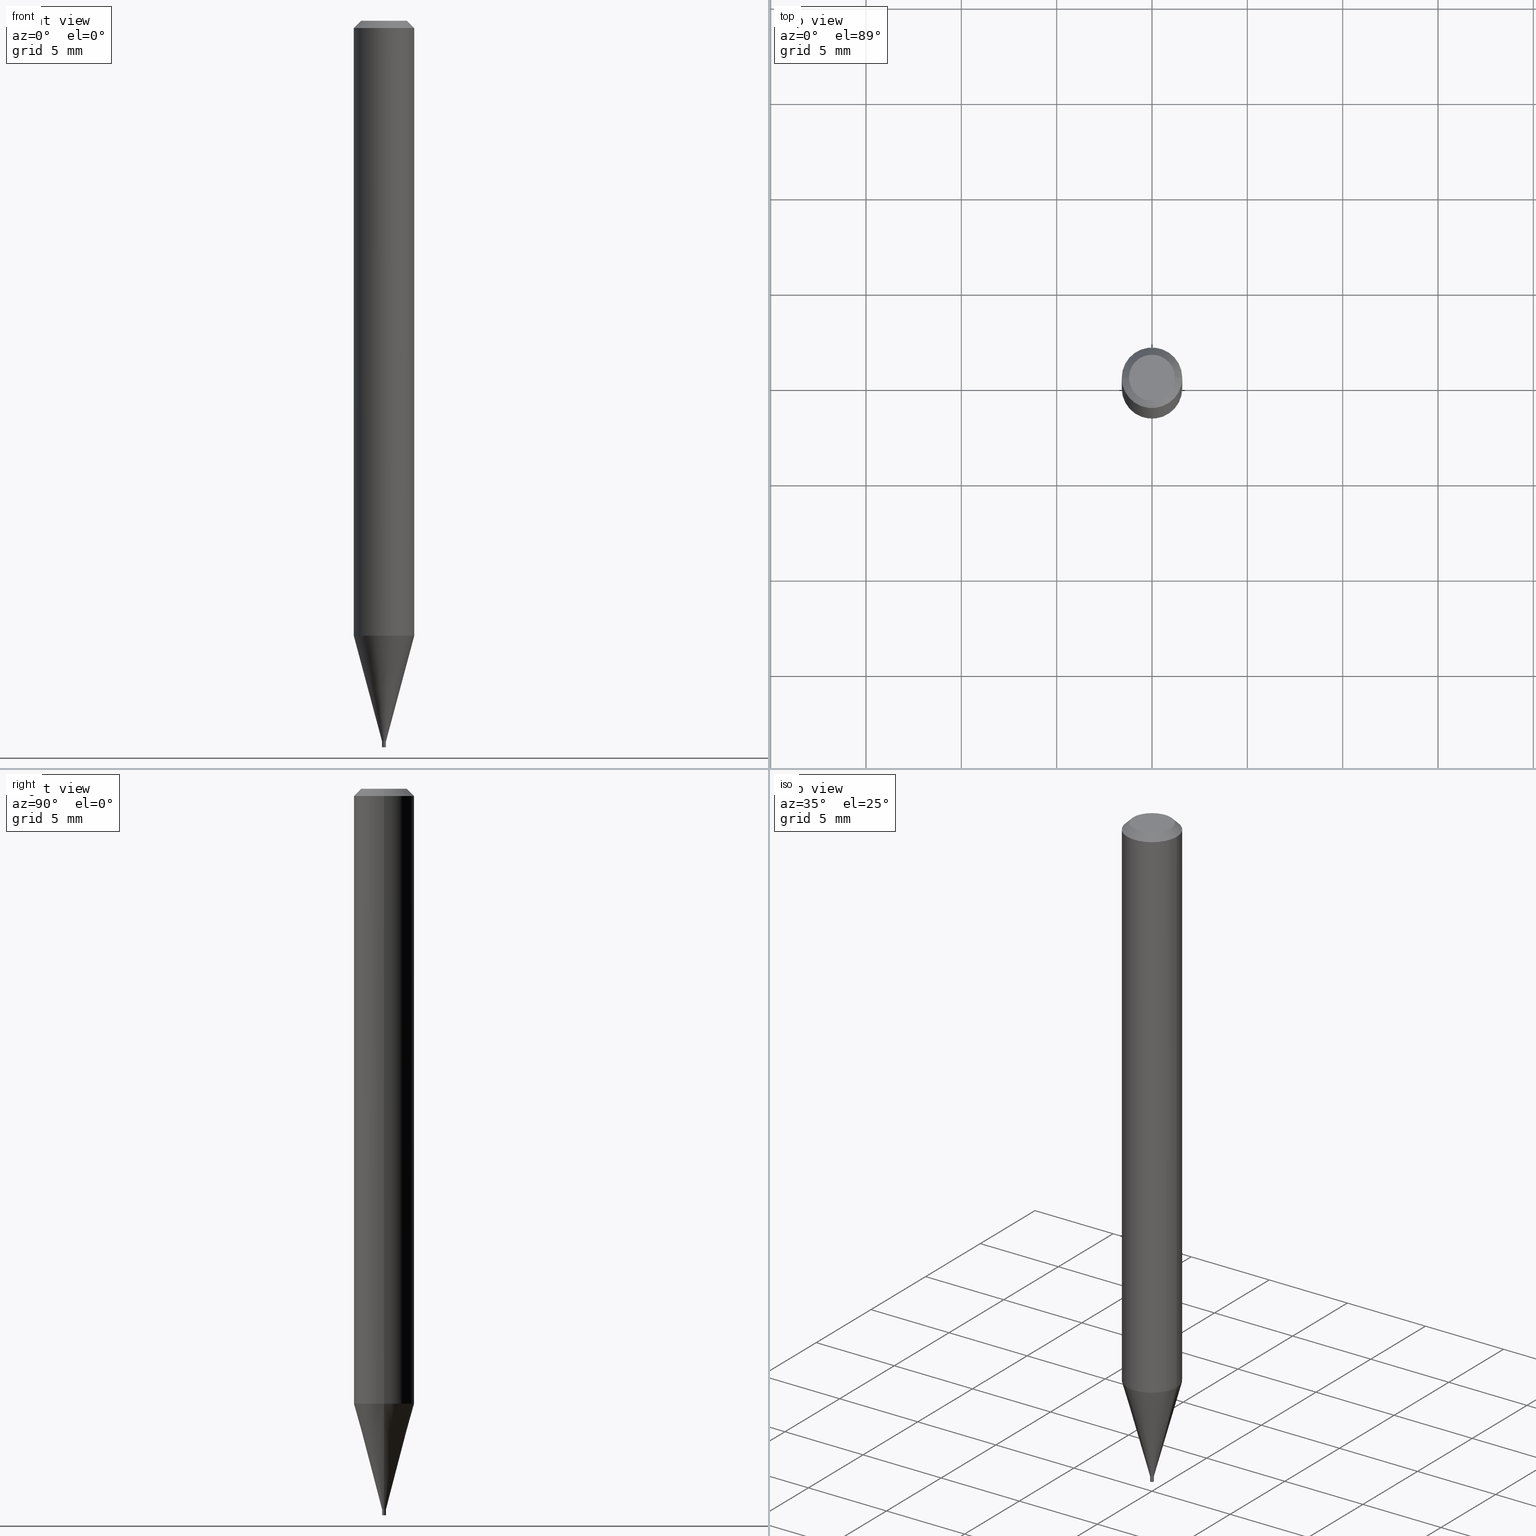
[diagram: canonical four-view strip — front | top / right | iso, engineering-drawing reading convention]
A machine part, canonical four-view strip (front | top / right | iso — engineering-drawing reading convention). The complete STEP part file that produces these views, byte-faithful:
ISO-10303-21;
HEADER;
FILE_DESCRIPTION (( 'STEP AP203' ),
    '1' );
FILE_NAME ('04043.STEP',
    '2024-03-14T16:55:10',
    ( '' ),
    ( '' ),
    'SwSTEP 2.0',
    'SolidWorks 2023',
    '' );
FILE_SCHEMA (( 'CONFIG_CONTROL_DESIGN' ));
ENDSEC;

DATA;
#1 = MANIFOLD_SOLID_BREP ( 'Body-Move/Copy2[1]', #128 ) ;
#2 = CALENDAR_DATE ( 2024, 14, 3 ) ;
#3 = CIRCLE ( 'NONE', #250, 0.06250000000000000000 ) ;
#4 = EDGE_LOOP ( 'NONE', ( #72, #270, #368, #363 ) ) ;
#5 = EDGE_CURVE ( 'NONE', #118, #435, #395, .T. ) ;
#6 = VERTEX_POINT ( 'NONE', #157 ) ;
#7 = EDGE_LOOP ( 'NONE', ( #77, #299, #229, #301 ) ) ;
#8 = CC_DESIGN_PERSON_AND_ORGANIZATION_ASSIGNMENT ( #218, #219, ( #259 ) ) ;
#9 = AXIS2_PLACEMENT_3D ( 'NONE', #61, #101, #213 ) ;
#10 = DIRECTION ( 'NONE',  ( 1.000000000000000000, -6.982962677686262766E-15, 0.000000000000000000 ) ) ;
#11 = FACE_OUTER_BOUND ( 'NONE', #4, .T. ) ;
#12 = EDGE_CURVE ( 'NONE', #155, #371, #264, .T. ) ;
#13 = ORIENTED_EDGE ( 'NONE', *, *, #252, .T. ) ;
#14 = CARTESIAN_POINT ( 'NONE',  ( -0.004000000000000000083, -5.187851410801255312E-15, -1.487999999999999989 ) ) ;
#15 = VERTEX_POINT ( 'NONE', #269 ) ;
#16 = PLANE ( 'NONE',  #145 ) ;
#17 = CIRCLE ( 'NONE', #374, 0.04749999999999999362 ) ;
#18 = CC_DESIGN_APPROVAL ( #399, ( #197 ) ) ;
#19 = CYLINDRICAL_SURFACE ( 'NONE', #349, 0.004000000000000000083 ) ;
#20 = ORIENTED_EDGE ( 'NONE', *, *, #356, .T. ) ;
#21 = PLANE ( 'NONE',  #421 ) ;
#22 = CIRCLE ( 'NONE', #191, 0.003999999999999648802 ) ;
#23 = CARTESIAN_POINT ( 'NONE',  ( 0.004000000000000000083, -5.223256082909346148E-15, -1.487999999999999989 ) ) ;
#24 = CARTESIAN_POINT ( 'NONE',  ( -0.06250000000000000000, -1.798620233096004515E-15, -0.01499999999999999944 ) ) ;
#25 = CARTESIAN_POINT ( 'NONE',  ( -0.004000000000000000083, 2.842170943040400803E-17, -1.967574036101962334E-31 ) ) ;
#26 = CARTESIAN_POINT ( 'NONE',  ( 3.638857583603483825E-29, -5.195324232198600513E-15, -1.487999999999999989 ) ) ;
#27 = FACE_OUTER_BOUND ( 'NONE', #434, .T. ) ;
#28 = CARTESIAN_POINT ( 'NONE',  ( -0.003999999999999648802, -4.577929989363811904E-15, -1.487999999999999989 ) ) ;
#29 = CIRCLE ( 'NONE', #108, 0.004000000000000000083 ) ;
#30 = DIRECTION ( 'NONE',  ( 1.000000000000000000, -6.982962677686332975E-15, 0.000000000000000000 ) ) ;
#31 = DIRECTION ( 'NONE',  ( -2.445468806185136597E-29, 3.491481338843145583E-15, 1.000000000000000000 ) ) ;
#32 = EDGE_CURVE ( 'NONE', #382, #118, #224, .T. ) ;
#33 = DIRECTION ( 'NONE',  ( -2.445468806185136597E-29, 3.491481338843145583E-15, 1.000000000000000000 ) ) ;
#34 = PERSON_AND_ORGANIZATION_ROLE ( 'creator' ) ;
#35 = ORIENTED_EDGE ( 'NONE', *, *, #32, .F. ) ;
#36 = CLOSED_SHELL ( 'NONE', ( #422, #411, #129, #466, #117, #263, #370, #429, #94, #441, #457, #272 ) ) ;
#37 = PERSON_AND_ORGANIZATION ( #462, #375 ) ;
#38 = AXIS2_PLACEMENT_3D ( 'NONE', #179, #313, #280 ) ;
#39 = EDGE_CURVE ( 'NONE', #152, #371, #306, .T. ) ;
#40 = DIMENSIONAL_EXPONENTS ( 1.000000000000000000, 0.000000000000000000, 0.000000000000000000, 0.000000000000000000, 0.000000000000000000, 0.000000000000000000, 0.000000000000000000 ) ;
#41 = EDGE_LOOP ( 'NONE', ( #344, #112, #151, #406 ) ) ;
#42 = EDGE_LOOP ( 'NONE', ( #376, #410, #408, #120 ) ) ;
#43 = ORIENTED_EDGE ( 'NONE', *, *, #12, .T. ) ;
#44 = ORIENTED_EDGE ( 'NONE', *, *, #380, .T. ) ;
#45 = CARTESIAN_POINT ( 'NONE',  ( 3.104950674372529160E-29, -4.433046665809486788E-15, -1.269675027757220187 ) ) ;
#46 = CC_DESIGN_PERSON_AND_ORGANIZATION_ASSIGNMENT ( #446, #126, ( #165 ) ) ;
#47 = LINE ( 'NONE', #230, #403 ) ;
#48 = ORIENTED_EDGE ( 'NONE', *, *, #324, .T. ) ;
#49 = VERTEX_POINT ( 'NONE', #14 ) ;
#50 = ORIENTED_EDGE ( 'NONE', *, *, #110, .T. ) ;
#51 = DIRECTION ( 'NONE',  ( 1.000000000000000000, -6.982962677686217801E-15, 0.000000000000000000 ) ) ;
#52 = ORIENTED_EDGE ( 'NONE', *, *, #241, .T. ) ;
#53 = CONICAL_SURFACE ( 'NONE', #59, 0.06250000000000000000, 0.7853981633974952414 ) ;
#54 = CARTESIAN_POINT ( 'NONE',  ( 0.003500000000000000507, -5.219764601570501563E-15, -1.487999999999999767 ) ) ;
#55 = DIRECTION ( 'NONE',  ( 0.7071067811869508057, -2.468850131086481016E-15, 0.7071067811861442287 ) ) ;
#56 = CARTESIAN_POINT ( 'NONE',  ( -0.06249999999999997918, -3.988957455959424172E-15, -1.269675027757220187 ) ) ;
#57 = ADVANCED_FACE ( 'NONE', ( #407 ), #19, .T. ) ;
#58 = CARTESIAN_POINT ( 'NONE',  ( 3.638857583603483265E-29, -5.195324232198599724E-15, -1.487999999999999767 ) ) ;
#59 = AXIS2_PLACEMENT_3D ( 'NONE', #277, #325, #354 ) ;
#60 = LOCAL_TIME ( 12, 55, 10.00000000000000000, #236 ) ;
#61 = CARTESIAN_POINT ( 'NONE',  ( 3.668203209277705088E-31, -5.237222008264718399E-17, -0.01499999999999999944 ) ) ;
#62 = CYLINDRICAL_SURFACE ( 'NONE', #38, 0.003999999999999922888 ) ;
#63 = CARTESIAN_POINT ( 'NONE',  ( 3.576687321579069994E-29, -5.368277968210015545E-15, -1.500000000000000222 ) ) ;
#64 = CARTESIAN_POINT ( 'NONE',  ( 3.638857583603483825E-29, -5.195324232198600513E-15, -1.487999999999999989 ) ) ;
#65 = CARTESIAN_POINT ( 'NONE',  ( 3.638857583603483825E-29, -5.195324232198600513E-15, -1.487999999999999989 ) ) ;
#66 = LENGTH_MEASURE_WITH_UNIT ( LENGTH_MEASURE( 0.02539999999999999897 ), #286 );
#67 = EDGE_CURVE ( 'NONE', #15, #152, #372, .T. ) ;
#68 = AXIS2_PLACEMENT_3D ( 'NONE', #64, #106, #243 ) ;
#69 = CARTESIAN_POINT ( 'NONE',  ( 3.668203209277704895E-29, -5.237222008264718177E-15, -1.500000000000000222 ) ) ;
#70 = PERSON_AND_ORGANIZATION ( #462, #375 ) ;
#71 = EDGE_CURVE ( 'NONE', #6, #260, #309, .T. ) ;
#72 = ORIENTED_EDGE ( 'NONE', *, *, #162, .T. ) ;
#73 = PRODUCT_RELATED_PRODUCT_CATEGORY ( 'detail', '', ( #165 ) ) ;
#74 = ORIENTED_EDGE ( 'NONE', *, *, #348, .F. ) ;
#75 = EDGE_LOOP ( 'NONE', ( #185, #401 ) ) ;
#76 = CARTESIAN_POINT ( 'NONE',  ( 0.000000000000000000, 0.000000000000000000, 0.000000000000000000 ) ) ;
#77 = ORIENTED_EDGE ( 'NONE', *, *, #186, .F. ) ;
#78 = EDGE_CURVE ( 'NONE', #155, #83, #373, .T. ) ;
#79 = CARTESIAN_POINT ( 'NONE',  ( -0.003500000000000000507, -5.170455236446996590E-15, -1.487999999999999767 ) ) ;
#80 = AXIS2_PLACEMENT_3D ( 'NONE', #121, #265, #268 ) ;
#81 = ORIENTED_EDGE ( 'NONE', *, *, #448, .F. ) ;
#82 = VECTOR ( 'NONE', #311, 39.37007874015748143 ) ;
#83 = VERTEX_POINT ( 'NONE', #54 ) ;
#84 = CARTESIAN_POINT ( 'NONE',  ( 0.004000000000000000083, -5.265153858975463812E-15, -1.500000000000000222 ) ) ;
#85 = DIRECTION ( 'NONE',  ( -2.445468806185136877E-29, 3.491481338843145188E-15, 1.000000000000000000 ) ) ;
#86 = VERTEX_POINT ( 'NONE', #84 ) ;
#87 = EDGE_CURVE ( 'NONE', #86, #232, #47, .T. ) ;
#88 =( CONVERSION_BASED_UNIT ( 'INCH', #66 ) LENGTH_UNIT ( ) NAMED_UNIT ( #40 ) );
#89 = CONICAL_SURFACE ( 'NONE', #153, 0.003999999999999648802, 0.2617993877991501295 ) ;
#90 = LOCAL_TIME ( 12, 55, 10.00000000000000000, #109 ) ;
#91 = PRODUCT_DEFINITION_SHAPE ( 'NONE', 'NONE',  #197 ) ;
#92 = APPROVAL_STATUS ( 'not_yet_approved' ) ;
#93 = DIRECTION ( 'NONE',  ( 2.438088387897960049E-29, -3.491481338843145188E-15, -1.000000000000000000 ) ) ;
#94 = ADVANCED_FACE ( 'NONE', ( #198 ), #16, .F. ) ;
#95 = FACE_OUTER_BOUND ( 'NONE', #187, .T. ) ;
#96 = CARTESIAN_POINT ( 'NONE',  ( -0.004000000000000000083, -5.187851410801255312E-15, -1.500000000000000222 ) ) ;
#97 = LINE ( 'NONE', #175, #146 ) ;
#98 = FACE_OUTER_BOUND ( 'NONE', #183, .T. ) ;
#99 = AXIS2_PLACEMENT_3D ( 'NONE', #262, #440, #337 ) ;
#100 = CIRCLE ( 'NONE', #320, 0.004000000000000000083 ) ;
#101 = DIRECTION ( 'NONE',  ( -2.445468806185136597E-29, 3.491481338843145583E-15, 1.000000000000000000 ) ) ;
#102 = CARTESIAN_POINT ( 'NONE',  ( 0.000000000000000000, 0.000000000000000000, 0.000000000000000000 ) ) ;
#103 = DIRECTION ( 'NONE',  ( 2.445468806185136597E-29, -3.491481338843145583E-15, -1.000000000000000000 ) ) ;
#104 = DIRECTION ( 'NONE',  ( 1.000000000000000000, -6.982962677686192558E-15, 0.000000000000000000 ) ) ;
#105 = DATE_AND_TIME ( #253, #90 ) ;
#106 = DIRECTION ( 'NONE',  ( -2.445468806185136597E-29, 3.491481338843145583E-15, 1.000000000000000000 ) ) ;
#107 = AXIS2_PLACEMENT_3D ( 'NONE', #305, #384, #443 ) ;
#108 = AXIS2_PLACEMENT_3D ( 'NONE', #206, #350, #452 ) ;
#109 = COORDINATED_UNIVERSAL_TIME_OFFSET ( 5, 0, .BEHIND. ) ;
#110 = EDGE_CURVE ( 'NONE', #6, #366, #444, .T. ) ;
#111 = DATE_AND_TIME ( #2, #328 ) ;
#112 = ORIENTED_EDGE ( 'NONE', *, *, #392, .T. ) ;
#113 = ORIENTED_EDGE ( 'NONE', *, *, #256, .F. ) ;
#114 = AXIS2_PLACEMENT_3D ( 'NONE', #58, #453, #208 ) ;
#115 = APPROVAL_PERSON_ORGANIZATION ( #431, #340, #298 ) ;
#116 = ORIENTED_EDGE ( 'NONE', *, *, #139, .T. ) ;
#117 = ADVANCED_FACE ( 'NONE', ( #11 ), #430, .T. ) ;
#118 = VERTEX_POINT ( 'NONE', #56 ) ;
#119 = EDGE_LOOP ( 'NONE', ( #188, #199 ) ) ;
#120 = ORIENTED_EDGE ( 'NONE', *, *, #110, .F. ) ;
#121 = CARTESIAN_POINT ( 'NONE',  ( 3.638857583603483265E-29, -5.195324232198599724E-15, -1.487999999999999767 ) ) ;
#122 = CONICAL_SURFACE ( 'NONE', #114, 0.003500000000000000507, 0.7853981633980186006 ) ;
#123 = CARTESIAN_POINT ( 'NONE',  ( -0.06250000000000000000, 3.840629472727444916E-16, -0.01499999999999999944 ) ) ;
#124 = ORIENTED_EDGE ( 'NONE', *, *, #289, .F. ) ;
#125 = DIRECTION ( 'NONE',  ( -2.445468806185136877E-29, 3.491481338843145188E-15, 1.000000000000000000 ) ) ;
#126 = PERSON_AND_ORGANIZATION_ROLE ( 'design_owner' ) ;
#127 = DIRECTION ( 'NONE',  ( -1.000000000000000000, 6.982962677686265922E-15, -4.876176775795935793E-29 ) ) ;
#128 = CLOSED_SHELL ( 'NONE', ( #437, #296, #57, #156 ) ) ;
#129 = ADVANCED_FACE ( 'NONE', ( #244 ), #235, .T. ) ;
#130 = CC_DESIGN_APPROVAL ( #340, ( #154 ) ) ;
#131 = DIRECTION ( 'NONE',  ( -2.445468806185136597E-29, 3.491481338843145583E-15, 1.000000000000000000 ) ) ;
#132 = DIRECTION ( 'NONE',  ( -2.445468806185136597E-29, 3.491481338843145583E-15, 1.000000000000000000 ) ) ;
#133 = CARTESIAN_POINT ( 'NONE',  ( 0.000000000000000000, 0.000000000000000000, 0.000000000000000000 ) ) ;
#134 = FACE_OUTER_BOUND ( 'NONE', #75, .T. ) ;
#135 = DIRECTION ( 'NONE',  ( 1.000000000000000000, -6.982962677686217801E-15, 0.000000000000000000 ) ) ;
#136 = CARTESIAN_POINT ( 'NONE',  ( 3.638857583603483265E-29, -5.195324232198599724E-15, -1.487999999999999767 ) ) ;
#137 = CIRCLE ( 'NONE', #68, 0.003999999999999648802 ) ;
#138 = LINE ( 'NONE', #416, #342 ) ;
#139 = EDGE_CURVE ( 'NONE', #86, #439, #29, .T. ) ;
#140 = CYLINDRICAL_SURFACE ( 'NONE', #389, 0.06250000000000000000 ) ;
#141 = LINE ( 'NONE', #323, #409 ) ;
#142 = DATE_TIME_ROLE ( 'creation_date' ) ;
#143 = DIRECTION ( 'NONE',  ( -2.445468806185136597E-29, 3.491481338843145583E-15, 1.000000000000000000 ) ) ;
#144 = CC_DESIGN_PERSON_AND_ORGANIZATION_ASSIGNMENT ( #285, #367, ( #197 ) ) ;
#145 = AXIS2_PLACEMENT_3D ( 'NONE', #163, #335, #307 ) ;
#146 = VECTOR ( 'NONE', #388, 39.37007874015748143 ) ;
#147 = APPROVAL_DATE_TIME ( #111, #148 ) ;
#148 = APPROVAL ( #255, 'UNSPECIFIED' ) ;
#149 = EDGE_LOOP ( 'NONE', ( #221, #182, #50, #329 ) ) ;
#150 = DATE_AND_TIME ( #291, #209 ) ;
#151 = ORIENTED_EDGE ( 'NONE', *, *, #87, .T. ) ;
#152 = VERTEX_POINT ( 'NONE', #246 ) ;
#153 = AXIS2_PLACEMENT_3D ( 'NONE', #347, #210, #135 ) ;
#154 = PRODUCT_DEFINITION_FORMATION_WITH_SPECIFIED_SOURCE ( 'ANY', '', #165, .NOT_KNOWN. ) ;
#155 = VERTEX_POINT ( 'NONE', #394 ) ;
#156 = ADVANCED_FACE ( 'NONE', ( #95 ), #172, .F. ) ;
#157 = CARTESIAN_POINT ( 'NONE',  ( -0.04749999999999999362, 3.578768372314186347E-16, -1.404502872476254025E-15 ) ) ;
#158 = CARTESIAN_POINT ( 'NONE',  ( -0.003999999999999648802, -5.166902522768199636E-15, -1.487999999999999989 ) ) ;
#159 = ORIENTED_EDGE ( 'NONE', *, *, #39, .F. ) ;
#160 = MANIFOLD_SOLID_BREP ( 'Body-Move/Copy2[2]', #36 ) ;
#161 = DIRECTION ( 'NONE',  ( 1.000000000000000000, -6.982962677686266711E-15, 4.876176775795935793E-29 ) ) ;
#162 = EDGE_CURVE ( 'NONE', #15, #382, #22, .T. ) ;
#163 = CARTESIAN_POINT ( 'NONE',  ( 3.316907271900976096E-16, 0.04749999999999999362, -8.680967998331751761E-16 ) ) ;
#164 = ORIENTED_EDGE ( 'NONE', *, *, #356, .F. ) ;
#165 = PRODUCT ( '04043', '04043', '', ( #346 ) ) ;
#166 = DIRECTION ( 'NONE',  ( -2.438088387897960049E-29, 3.491481338843145188E-15, 1.000000000000000000 ) ) ;
#167 = VECTOR ( 'NONE', #343, 39.37007874015748854 ) ;
#168 = EDGE_CURVE ( 'NONE', #260, #412, #138, .T. ) ;
#169 = AXIS2_PLACEMENT_3D ( 'NONE', #279, #420, #385 ) ;
#170 = FACE_OUTER_BOUND ( 'NONE', #7, .T. ) ;
#171 = DIRECTION ( 'NONE',  ( 1.000000000000000000, -6.982962677686262766E-15, 0.000000000000000000 ) ) ;
#172 = PLANE ( 'NONE',  #181 ) ;
#173 = DIRECTION ( 'NONE',  ( -2.445468806185136597E-29, 3.491481338843145583E-15, 1.000000000000000000 ) ) ;
#174 = CC_DESIGN_DATE_AND_TIME_ASSIGNMENT ( #150, #142, ( #197 ) ) ;
#175 = CARTESIAN_POINT ( 'NONE',  ( 0.06250000000000000000, -4.364351673553916694E-16, 3.047610484872459871E-30 ) ) ;
#176 = DIRECTION ( 'NONE',  ( 1.000000000000000000, -6.982962677686265922E-15, 4.876176775795935793E-29 ) ) ;
#177 = AXIS2_PLACEMENT_3D ( 'NONE', #314, #454, #308 ) ;
#178 = CARTESIAN_POINT ( 'NONE',  ( 3.638857583603483825E-29, -5.195324232198600513E-15, -1.487999999999999989 ) ) ;
#179 = CARTESIAN_POINT ( 'NONE',  ( 0.000000000000000000, 0.000000000000000000, 0.000000000000000000 ) ) ;
#180 = DATE_AND_TIME ( #295, #192 ) ;
#181 = AXIS2_PLACEMENT_3D ( 'NONE', #214, #93, #127 ) ;
#182 = ORIENTED_EDGE ( 'NONE', *, *, #71, .F. ) ;
#183 = EDGE_LOOP ( 'NONE', ( #164, #190, #48, #74 ) ) ;
#184 = APPROVAL_DATE_TIME ( #105, #340 ) ;
#185 = ORIENTED_EDGE ( 'NONE', *, *, #362, .F. ) ;
#186 = EDGE_CURVE ( 'NONE', #382, #371, #284, .T. ) ;
#187 = EDGE_LOOP ( 'NONE', ( #52, #436 ) ) ;
#188 = ORIENTED_EDGE ( 'NONE', *, *, #71, .T. ) ;
#189 = VECTOR ( 'NONE', #196, 39.37007874015748143 ) ;
#190 = ORIENTED_EDGE ( 'NONE', *, *, #5, .T. ) ;
#191 = AXIS2_PLACEMENT_3D ( 'NONE', #424, #276, #460 ) ;
#192 = LOCAL_TIME ( 12, 55, 10.00000000000000000, #361 ) ;
#193 = ORIENTED_EDGE ( 'NONE', *, *, #324, .F. ) ;
#194 = APPLICATION_CONTEXT ( 'configuration controlled 3d designs of mechanical parts and assemblies' ) ;
#195 = ORIENTED_EDGE ( 'NONE', *, *, #405, .T. ) ;
#196 = DIRECTION ( 'NONE',  ( -0.7071067811869508057, 7.493145998871811975E-15, 0.7071067811861442287 ) ) ;
#197 = PRODUCT_DEFINITION ( 'UNKNOWN', '', #154, #233 ) ;
#198 = FACE_OUTER_BOUND ( 'NONE', #119, .T. ) ;
#199 = ORIENTED_EDGE ( 'NONE', *, *, #203, .T. ) ;
#200 = AXIS2_PLACEMENT_3D ( 'NONE', #26, #459, #176 ) ;
#201 = DIRECTION ( 'NONE',  ( -2.445468806185136597E-29, 3.491481338843145583E-15, 1.000000000000000000 ) ) ;
#202 = CALENDAR_DATE ( 2024, 14, 3 ) ;
#203 = EDGE_CURVE ( 'NONE', #260, #6, #17, .T. ) ;
#204 = CARTESIAN_POINT ( 'NONE',  ( 3.668203209277705088E-31, -5.237222008264718399E-17, -0.01499999999999999944 ) ) ;
#205 = APPLICATION_PROTOCOL_DEFINITION ( 'international standard', 'config_control_design', 1994, #294 ) ;
#206 = CARTESIAN_POINT ( 'NONE',  ( 3.668203209277704895E-29, -5.237222008264718177E-15, -1.500000000000000222 ) ) ;
#207 = AXIS2_PLACEMENT_3D ( 'NONE', #287, #426, #104 ) ;
#208 = DIRECTION ( 'NONE',  ( 1.000000000000000000, -6.982962677686192558E-15, 0.000000000000000000 ) ) ;
#209 = LOCAL_TIME ( 12, 55, 10.00000000000000000, #326 ) ;
#210 = DIRECTION ( 'NONE',  ( -2.445468806185136597E-29, 3.491481338843145583E-15, 1.000000000000000000 ) ) ;
#211 = CC_DESIGN_PERSON_AND_ORGANIZATION_ASSIGNMENT ( #70, #400, ( #154 ) ) ;
#212 = DIRECTION ( 'NONE',  ( -2.445468806185136597E-29, 3.491481338843145583E-15, 1.000000000000000000 ) ) ;
#213 = DIRECTION ( 'NONE',  ( 1.000000000000000000, -6.982962677686266711E-15, 0.000000000000000000 ) ) ;
#214 = CARTESIAN_POINT ( 'NONE',  ( 2.793185071078145404E-17, 0.003999999999994804586, -1.487999999999999989 ) ) ;
#215 = PLANE ( 'NONE',  #200 ) ;
#216 = AXIS2_PLACEMENT_3D ( 'NONE', #136, #143, #239 ) ;
#217 = FACE_OUTER_BOUND ( 'NONE', #302, .T. ) ;
#218 = PERSON_AND_ORGANIZATION ( #462, #375 ) ;
#219 = PERSON_AND_ORGANIZATION_ROLE ( 'classification_officer' ) ;
#220 = CONICAL_SURFACE ( 'NONE', #216, 0.003500000000000000507, 0.7853981633980186006 ) ;
#221 = ORIENTED_EDGE ( 'NONE', *, *, #168, .F. ) ;
#222 = ORIENTED_EDGE ( 'NONE', *, *, #139, .F. ) ;
#223 = ORIENTED_EDGE ( 'NONE', *, *, #186, .T. ) ;
#224 = LINE ( 'NONE', #158, #449 ) ;
#225 = ORIENTED_EDGE ( 'NONE', *, *, #415, .T. ) ;
#226 = ORIENTED_EDGE ( 'NONE', *, *, #87, .F. ) ;
#227 = AXIS2_PLACEMENT_3D ( 'NONE', #423, #33, #425 ) ;
#228 = EDGE_CURVE ( 'NONE', #49, #232, #351, .T. ) ;
#229 = ORIENTED_EDGE ( 'NONE', *, *, #67, .T. ) ;
#230 = CARTESIAN_POINT ( 'NONE',  ( 0.004000000000000000083, -2.793185071074506783E-17, 1.950470710318374300E-31 ) ) ;
#231 = CC_DESIGN_DATE_AND_TIME_ASSIGNMENT ( #180, #247, ( #259 ) ) ;
#232 = VERTEX_POINT ( 'NONE', #23 ) ;
#233 = DESIGN_CONTEXT ( 'detailed design', #194, 'design' ) ;
#234 =( NAMED_UNIT ( * ) SI_UNIT ( $, .STERADIAN. ) SOLID_ANGLE_UNIT ( ) );
#235 = CONICAL_SURFACE ( 'NONE', #293, 0.06250000000000000000, 0.7853981633974952414 ) ;
#236 = COORDINATED_UNIVERSAL_TIME_OFFSET ( 5, 0, .BEHIND. ) ;
#237 = DIRECTION ( 'NONE',  ( 1.000000000000000000, -6.982962677686265922E-15, 4.876176775795935793E-29 ) ) ;
#238 = LINE ( 'NONE', #25, #300 ) ;
#239 = DIRECTION ( 'NONE',  ( 1.000000000000000000, -6.982962677686192558E-15, 0.000000000000000000 ) ) ;
#240 = DIRECTION ( 'NONE',  ( -2.445468806185136597E-29, 3.491481338843145583E-15, 1.000000000000000000 ) ) ;
#241 = EDGE_CURVE ( 'NONE', #232, #49, #100, .T. ) ;
#242 = AXIS2_PLACEMENT_3D ( 'NONE', #69, #31, #283 ) ;
#243 = DIRECTION ( 'NONE',  ( 1.000000000000000000, -6.982962677686217801E-15, 0.000000000000000000 ) ) ;
#244 = FACE_OUTER_BOUND ( 'NONE', #42, .T. ) ;
#245 = FACE_OUTER_BOUND ( 'NONE', #330, .T. ) ;
#246 = CARTESIAN_POINT ( 'NONE',  ( 0.004000000000000196974, -5.221510342239925433E-15, -1.487500000000000266 ) ) ;
#247 = DATE_TIME_ROLE ( 'classification_date' ) ;
#248 = DIRECTION ( 'NONE',  ( 1.000000000000000000, -6.982962677686266711E-15, 4.876176775795935793E-29 ) ) ;
#249 = DIRECTION ( 'NONE',  ( 0.2588190451025214611, 1.565188264969621573E-15, 0.9659258262890682012 ) ) ;
#250 = AXIS2_PLACEMENT_3D ( 'NONE', #428, #132, #171 ) ;
#251 = APPROVAL_PERSON_ORGANIZATION ( #37, #148, #327 ) ;
#252 = EDGE_CURVE ( 'NONE', #439, #49, #238, .T. ) ;
#253 = CALENDAR_DATE ( 2024, 14, 3 ) ;
#254 = ORIENTED_EDGE ( 'NONE', *, *, #362, .T. ) ;
#255 = APPROVAL_STATUS ( 'not_yet_approved' ) ;
#256 = EDGE_CURVE ( 'NONE', #83, #152, #418, .T. ) ;
#257 = AXIS2_PLACEMENT_3D ( 'NONE', #45, #334, #10 ) ;
#258 = AXIS2_PLACEMENT_3D ( 'NONE', #316, #212, #290 ) ;
#259 = SECURITY_CLASSIFICATION ( '', '', #427 ) ;
#260 = VERTEX_POINT ( 'NONE', #458 ) ;
#261 = ORIENTED_EDGE ( 'NONE', *, *, #5, .F. ) ;
#262 = CARTESIAN_POINT ( 'NONE',  ( 3.637634849200391024E-29, -5.193578491529179010E-15, -1.487500000000000266 ) ) ;
#263 = ADVANCED_FACE ( 'NONE', ( #274 ), #89, .T. ) ;
#264 = LINE ( 'NONE', #79, #189 ) ;
#265 = DIRECTION ( 'NONE',  ( -2.445468806185136597E-29, 3.491481338843145583E-15, 1.000000000000000000 ) ) ;
#266 = EDGE_LOOP ( 'NONE', ( #35, #195, #225, #261 ) ) ;
#267 = CIRCLE ( 'NONE', #242, 0.004000000000000000083 ) ;
#268 = DIRECTION ( 'NONE',  ( 1.000000000000000000, -6.982962677686192558E-15, 0.000000000000000000 ) ) ;
#269 = CARTESIAN_POINT ( 'NONE',  ( 0.003999999999999648802, -5.223256082909342993E-15, -1.487999999999999989 ) ) ;
#270 = ORIENTED_EDGE ( 'NONE', *, *, #32, .T. ) ;
#271 = PERSON_AND_ORGANIZATION ( #462, #375 ) ;
#272 = ADVANCED_FACE ( 'NONE', ( #170 ), #281, .F. ) ;
#273 = APPROVAL_ROLE ( '' ) ;
#274 = FACE_OUTER_BOUND ( 'NONE', #266, .T. ) ;
#275 =( NAMED_UNIT ( * ) PLANE_ANGLE_UNIT ( ) SI_UNIT ( $, .RADIAN. ) );
#276 = DIRECTION ( 'NONE',  ( -2.445468806185136597E-29, 3.491481338843145583E-15, 1.000000000000000000 ) ) ;
#277 = CARTESIAN_POINT ( 'NONE',  ( 3.668203209277705088E-31, -5.237222008264718399E-17, -0.01499999999999999944 ) ) ;
#278 = CC_DESIGN_PERSON_AND_ORGANIZATION_ASSIGNMENT ( #288, #34, ( #154 ) ) ;
#279 = CARTESIAN_POINT ( 'NONE',  ( 3.637634849200391024E-29, -5.193578491529179010E-15, -1.487500000000000266 ) ) ;
#280 = DIRECTION ( 'NONE',  ( 1.000000000000000000, -6.982962677686265922E-15, 4.876176775795935793E-29 ) ) ;
#281 = CYLINDRICAL_SURFACE ( 'NONE', #450, 0.003999999999999922888 ) ;
#282 = AXIS2_PLACEMENT_3D ( 'NONE', #65, #240, #30 ) ;
#283 = DIRECTION ( 'NONE',  ( 1.000000000000000000, -6.982962677686332975E-15, 0.000000000000000000 ) ) ;
#284 = LINE ( 'NONE', #391, #82 ) ;
#285 = PERSON_AND_ORGANIZATION ( #462, #375 ) ;
#286 =( LENGTH_UNIT ( ) NAMED_UNIT ( * ) SI_UNIT ( $, .METRE. ) );
#287 = CARTESIAN_POINT ( 'NONE',  ( 3.638857583603483265E-29, -5.195324232198599724E-15, -1.487999999999999767 ) ) ;
#288 = PERSON_AND_ORGANIZATION ( #462, #375 ) ;
#289 = EDGE_CURVE ( 'NONE', #371, #152, #358, .T. ) ;
#290 = DIRECTION ( 'NONE',  ( 1.000000000000000000, -6.982962677686266711E-15, 4.876176775795935793E-29 ) ) ;
#291 = CALENDAR_DATE ( 2024, 14, 3 ) ;
#292 = AXIS2_PLACEMENT_3D ( 'NONE', #345, #381, #51 ) ;
#293 = AXIS2_PLACEMENT_3D ( 'NONE', #204, #103, #319 ) ;
#294 = APPLICATION_CONTEXT ( 'configuration controlled 3d designs of mechanical parts and assemblies' ) ;
#295 = CALENDAR_DATE ( 2024, 14, 3 ) ;
#296 = ADVANCED_FACE ( 'NONE', ( #27 ), #21, .F. ) ;
#297 = ORIENTED_EDGE ( 'NONE', *, *, #67, .F. ) ;
#298 = APPROVAL_ROLE ( '' ) ;
#299 = ORIENTED_EDGE ( 'NONE', *, *, #162, .F. ) ;
#300 = VECTOR ( 'NONE', #355, 39.37007874015748143 ) ;
#301 = ORIENTED_EDGE ( 'NONE', *, *, #39, .T. ) ;
#302 = EDGE_LOOP ( 'NONE', ( #336, #223, #438, #297 ) ) ;
#303 = DIRECTION ( 'NONE',  ( -0.2588190451025214611, 5.211531920934551042E-15, 0.9659258262890682012 ) ) ;
#304 = ORIENTED_EDGE ( 'NONE', *, *, #256, .T. ) ;
#305 = CARTESIAN_POINT ( 'NONE',  ( 3.434667962838094334E-44, -4.903795569602426839E-30, -1.404502872476251461E-15 ) ) ;
#306 = CIRCLE ( 'NONE', #99, 0.004000000000000196974 ) ;
#307 = DIRECTION ( 'NONE',  ( -1.000000000000000000, 6.982962677686265922E-15, -4.876176775795935793E-29 ) ) ;
#308 = DIRECTION ( 'NONE',  ( 1.000000000000000000, 0.000000000000000000, 0.000000000000000000 ) ) ;
#309 = CIRCLE ( 'NONE', #107, 0.04749999999999999362 ) ;
#310 = DATE_AND_TIME ( #202, #60 ) ;
#311 = DIRECTION ( 'NONE',  ( -2.445468806185136877E-29, 3.491481338843145188E-15, 1.000000000000000000 ) ) ;
#312 = CIRCLE ( 'NONE', #227, 0.06250000000000000000 ) ;
#313 = DIRECTION ( 'NONE',  ( -2.445468806185136597E-29, 3.491481338843145583E-15, 1.000000000000000000 ) ) ;
#314 = CARTESIAN_POINT ( 'NONE',  ( 0.000000000000000000, 0.000000000000000000, 0.000000000000000000 ) ) ;
#315 = CARTESIAN_POINT ( 'NONE',  ( 3.434667962838094334E-44, -4.903795569602426839E-30, -1.404502872476251461E-15 ) ) ;
#316 = CARTESIAN_POINT ( 'NONE',  ( 0.000000000000000000, 0.000000000000000000, 0.000000000000000000 ) ) ;
#317 = DIRECTION ( 'NONE',  ( 1.000000000000000000, -6.982962677686267499E-15, 5.108144071313017768E-29 ) ) ;
#318 = FACE_OUTER_BOUND ( 'NONE', #404, .T. ) ;
#319 = DIRECTION ( 'NONE',  ( -1.000000000000000000, 6.982962677686266711E-15, 0.000000000000000000 ) ) ;
#320 = AXIS2_PLACEMENT_3D ( 'NONE', #178, #353, #455 ) ;
#321 =( GEOMETRIC_REPRESENTATION_CONTEXT ( 3 ) GLOBAL_UNCERTAINTY_ASSIGNED_CONTEXT ( ( #379 ) ) GLOBAL_UNIT_ASSIGNED_CONTEXT ( ( #88, #275, #234 ) ) REPRESENTATION_CONTEXT ( 'NONE', 'WORKASPACE' ) );
#322 = DIRECTION ( 'NONE',  ( -2.445468806185136597E-29, 3.491481338843145583E-15, 1.000000000000000000 ) ) ;
#323 = CARTESIAN_POINT ( 'NONE',  ( -0.06250000000000000000, 4.440892098500626162E-16, -3.074334431409316114E-30 ) ) ;
#324 = EDGE_CURVE ( 'NONE', #435, #412, #97, .T. ) ;
#325 = DIRECTION ( 'NONE',  ( 2.445468806185136597E-29, -3.491481338843145583E-15, -1.000000000000000000 ) ) ;
#326 = COORDINATED_UNIVERSAL_TIME_OFFSET ( 5, 0, .BEHIND. ) ;
#327 = APPROVAL_ROLE ( '' ) ;
#328 = LOCAL_TIME ( 12, 55, 10.00000000000000000, #402 ) ;
#329 = ORIENTED_EDGE ( 'NONE', *, *, #348, .T. ) ;
#330 = EDGE_LOOP ( 'NONE', ( #442, #338, #304, #124 ) ) ;
#331 = ORIENTED_EDGE ( 'NONE', *, *, #392, .F. ) ;
#332 = ORIENTED_EDGE ( 'NONE', *, *, #241, .F. ) ;
#333 = VECTOR ( 'NONE', #55, 39.37007874015748143 ) ;
#334 = DIRECTION ( 'NONE',  ( -2.445468806185136597E-29, 3.491481338843145583E-15, 1.000000000000000000 ) ) ;
#335 = DIRECTION ( 'NONE',  ( 2.438088387897960049E-29, -3.491481338843145188E-15, -1.000000000000000000 ) ) ;
#336 = ORIENTED_EDGE ( 'NONE', *, *, #405, .F. ) ;
#337 = DIRECTION ( 'NONE',  ( 1.000000000000000000, -6.982962677686231212E-15, 0.000000000000000000 ) ) ;
#338 = ORIENTED_EDGE ( 'NONE', *, *, #78, .T. ) ;
#339 = CARTESIAN_POINT ( 'NONE',  ( 0.003999999999999922888, -2.793185071074452549E-17, 1.950470710318336640E-31 ) ) ;
#340 = APPROVAL ( #464, 'UNSPECIFIED' ) ;
#341 = VECTOR ( 'NONE', #125, 39.37007874015748143 ) ;
#342 = VECTOR ( 'NONE', #357, 39.37007874015748854 ) ;
#343 = DIRECTION ( 'NONE',  ( -0.7071067811865806574, 2.468850131082604554E-15, -0.7071067811865142660 ) ) ;
#344 = ORIENTED_EDGE ( 'NONE', *, *, #252, .F. ) ;
#345 = CARTESIAN_POINT ( 'NONE',  ( 3.638857583603483825E-29, -5.195324232198600513E-15, -1.487999999999999989 ) ) ;
#346 = MECHANICAL_CONTEXT ( 'NONE', #294, 'mechanical' ) ;
#347 = CARTESIAN_POINT ( 'NONE',  ( 3.638857583603483825E-29, -5.195324232198600513E-15, -1.487999999999999989 ) ) ;
#348 = EDGE_CURVE ( 'NONE', #366, #412, #432, .T. ) ;
#349 = AXIS2_PLACEMENT_3D ( 'NONE', #76, #201, #161 ) ;
#350 = DIRECTION ( 'NONE',  ( -2.445468806185136597E-29, 3.491481338843145583E-15, 1.000000000000000000 ) ) ;
#351 = CIRCLE ( 'NONE', #282, 0.004000000000000000083 ) ;
#352 = FACE_OUTER_BOUND ( 'NONE', #369, .T. ) ;
#353 = DIRECTION ( 'NONE',  ( -2.445468806185136597E-29, 3.491481338843145583E-15, 1.000000000000000000 ) ) ;
#354 = DIRECTION ( 'NONE',  ( -1.000000000000000000, 6.982962677686266711E-15, 0.000000000000000000 ) ) ;
#355 = DIRECTION ( 'NONE',  ( -2.445468806185136877E-29, 3.491481338843145188E-15, 1.000000000000000000 ) ) ;
#356 = EDGE_CURVE ( 'NONE', #118, #366, #141, .T. ) ;
#357 = DIRECTION ( 'NONE',  ( 0.7071067811865806574, -7.319954787623366486E-15, -0.7071067811865142660 ) ) ;
#358 = CIRCLE ( 'NONE', #169, 0.004000000000000196974 ) ;
#359 = CARTESIAN_POINT ( 'NONE',  ( 0.000000000000000000, 0.000000000000000000, 0.000000000000000000 ) ) ;
#360 = FACE_OUTER_BOUND ( 'NONE', #377, .T. ) ;
#361 = COORDINATED_UNIVERSAL_TIME_OFFSET ( 5, 0, .BEHIND. ) ;
#362 = EDGE_CURVE ( 'NONE', #83, #155, #364, .T. ) ;
#363 = ORIENTED_EDGE ( 'NONE', *, *, #415, .F. ) ;
#364 = CIRCLE ( 'NONE', #207, 0.003500000000000000507 ) ;
#365 = CC_DESIGN_SECURITY_CLASSIFICATION ( #259, ( #154 ) ) ;
#366 = VERTEX_POINT ( 'NONE', #24 ) ;
#367 = PERSON_AND_ORGANIZATION_ROLE ( 'creator' ) ;
#368 = ORIENTED_EDGE ( 'NONE', *, *, #380, .F. ) ;
#369 = EDGE_LOOP ( 'NONE', ( #44, #20, #81, #193 ) ) ;
#370 = ADVANCED_FACE ( 'NONE', ( #98 ), #419, .T. ) ;
#371 = VERTEX_POINT ( 'NONE', #417 ) ;
#372 = LINE ( 'NONE', #339, #341 ) ;
#373 = CIRCLE ( 'NONE', #80, 0.003500000000000000507 ) ;
#374 = AXIS2_PLACEMENT_3D ( 'NONE', #315, #131, #317 ) ;
#375 = ORGANIZATION ( 'UNSPECIFIED', 'UNSPECIFIED', '' ) ;
#376 = ORIENTED_EDGE ( 'NONE', *, *, #203, .F. ) ;
#377 = EDGE_LOOP ( 'NONE', ( #116, #13, #332, #226 ) ) ;
#378 = ADVANCED_BREP_SHAPE_REPRESENTATION ( '04043', ( #1, #160, #177 ), #321 ) ;
#379 = UNCERTAINTY_MEASURE_WITH_UNIT (LENGTH_MEASURE( 1.000000000000000082E-05 ), #88, 'distance_accuracy_value', 'NONE');
#380 = EDGE_CURVE ( 'NONE', #435, #118, #3, .T. ) ;
#381 = DIRECTION ( 'NONE',  ( -2.445468806185136597E-29, 3.491481338843145583E-15, 1.000000000000000000 ) ) ;
#382 = VERTEX_POINT ( 'NONE', #28 ) ;
#383 = CC_DESIGN_APPROVAL ( #148, ( #259 ) ) ;
#384 = DIRECTION ( 'NONE',  ( -2.445468806185136597E-29, 3.491481338843145583E-15, 1.000000000000000000 ) ) ;
#385 = DIRECTION ( 'NONE',  ( 1.000000000000000000, -6.982962677686231212E-15, 0.000000000000000000 ) ) ;
#386 = DIRECTION ( 'NONE',  ( 1.000000000000000000, -6.982962677686265922E-15, 4.876176775795935793E-29 ) ) ;
#387 = CYLINDRICAL_SURFACE ( 'NONE', #258, 0.004000000000000000083 ) ;
#388 = DIRECTION ( 'NONE',  ( -2.445468806185136877E-29, 3.491481338843145188E-15, 1.000000000000000000 ) ) ;
#389 = AXIS2_PLACEMENT_3D ( 'NONE', #102, #322, #393 ) ;
#390 = FACE_OUTER_BOUND ( 'NONE', #149, .T. ) ;
#391 = CARTESIAN_POINT ( 'NONE',  ( -0.003999999999999922888, 2.842170943040345952E-17, -1.967574036101924236E-31 ) ) ;
#392 = EDGE_CURVE ( 'NONE', #439, #86, #267, .T. ) ;
#393 = DIRECTION ( 'NONE',  ( 1.000000000000000000, -6.982962677686266711E-15, 4.876176775795935793E-29 ) ) ;
#394 = CARTESIAN_POINT ( 'NONE',  ( -0.003500000000000000507, -5.167806009272885389E-15, -1.487999999999999767 ) ) ;
#395 = CIRCLE ( 'NONE', #257, 0.06250000000000000000 ) ;
#396 = VECTOR ( 'NONE', #249, 39.37007874015747433 ) ;
#397 = APPROVAL_PERSON_ORGANIZATION ( #271, #399, #273 ) ;
#398 = CARTESIAN_POINT ( 'NONE',  ( 0.06249999999999997918, -4.869481833164877669E-15, -1.269675027757220187 ) ) ;
#399 = APPROVAL ( #92, 'UNSPECIFIED' ) ;
#400 = PERSON_AND_ORGANIZATION_ROLE ( 'design_supplier' ) ;
#401 = ORIENTED_EDGE ( 'NONE', *, *, #78, .F. ) ;
#402 = COORDINATED_UNIVERSAL_TIME_OFFSET ( 5, 0, .BEHIND. ) ;
#403 = VECTOR ( 'NONE', #85, 39.37007874015748143 ) ;
#404 = EDGE_LOOP ( 'NONE', ( #254, #43, #159, #113 ) ) ;
#405 = EDGE_CURVE ( 'NONE', #382, #15, #137, .T. ) ;
#406 = ORIENTED_EDGE ( 'NONE', *, *, #228, .F. ) ;
#407 = FACE_OUTER_BOUND ( 'NONE', #41, .T. ) ;
#408 = ORIENTED_EDGE ( 'NONE', *, *, #448, .T. ) ;
#409 = VECTOR ( 'NONE', #463, 39.37007874015748143 ) ;
#410 = ORIENTED_EDGE ( 'NONE', *, *, #168, .T. ) ;
#411 = ADVANCED_FACE ( 'NONE', ( #318 ), #220, .T. ) ;
#412 = VERTEX_POINT ( 'NONE', #461 ) ;
#413 = AXIS2_PLACEMENT_3D ( 'NONE', #359, #173, #248 ) ;
#414 = DIRECTION ( 'NONE',  ( -2.445468806185136597E-29, 3.491481338843145583E-15, 1.000000000000000000 ) ) ;
#415 = EDGE_CURVE ( 'NONE', #15, #435, #456, .T. ) ;
#416 = CARTESIAN_POINT ( 'NONE',  ( 0.06250000000000000000, -4.811533449433679005E-16, -0.01499999999999999944 ) ) ;
#417 = CARTESIAN_POINT ( 'NONE',  ( -0.004000000000000196974, -5.165156782098774188E-15, -1.487500000000000266 ) ) ;
#418 = LINE ( 'NONE', #447, #333 ) ;
#419 = CYLINDRICAL_SURFACE ( 'NONE', #413, 0.06250000000000000000 ) ;
#420 = DIRECTION ( 'NONE',  ( -2.445468806185136597E-29, 3.491481338843145583E-15, 1.000000000000000000 ) ) ;
#421 = AXIS2_PLACEMENT_3D ( 'NONE', #63, #166, #386 ) ;
#422 = ADVANCED_FACE ( 'NONE', ( #217 ), #62, .F. ) ;
#423 = CARTESIAN_POINT ( 'NONE',  ( 3.668203209277705088E-31, -5.237222008264718399E-17, -0.01499999999999999944 ) ) ;
#424 = CARTESIAN_POINT ( 'NONE',  ( 3.638857583603483825E-29, -5.195324232198600513E-15, -1.487999999999999989 ) ) ;
#425 = DIRECTION ( 'NONE',  ( 1.000000000000000000, -6.982962677686266711E-15, 0.000000000000000000 ) ) ;
#426 = DIRECTION ( 'NONE',  ( -2.445468806185136597E-29, 3.491481338843145583E-15, 1.000000000000000000 ) ) ;
#427 = SECURITY_CLASSIFICATION_LEVEL ( 'unclassified' ) ;
#428 = CARTESIAN_POINT ( 'NONE',  ( 3.104950674372529160E-29, -4.433046665809486788E-15, -1.269675027757220187 ) ) ;
#429 = ADVANCED_FACE ( 'NONE', ( #390 ), #53, .T. ) ;
#430 = CONICAL_SURFACE ( 'NONE', #292, 0.003999999999999648802, 0.2617993877991501295 ) ;
#431 = PERSON_AND_ORGANIZATION ( #462, #375 ) ;
#432 = CIRCLE ( 'NONE', #9, 0.06250000000000000000 ) ;
#433 = SHAPE_DEFINITION_REPRESENTATION ( #91, #378 ) ;
#434 = EDGE_LOOP ( 'NONE', ( #222, #331 ) ) ;
#435 = VERTEX_POINT ( 'NONE', #398 ) ;
#436 = ORIENTED_EDGE ( 'NONE', *, *, #228, .T. ) ;
#437 = ADVANCED_FACE ( 'NONE', ( #360 ), #387, .T. ) ;
#438 = ORIENTED_EDGE ( 'NONE', *, *, #289, .T. ) ;
#439 = VERTEX_POINT ( 'NONE', #96 ) ;
#440 = DIRECTION ( 'NONE',  ( -2.445468806185136597E-29, 3.491481338843145583E-15, 1.000000000000000000 ) ) ;
#441 = ADVANCED_FACE ( 'NONE', ( #134 ), #215, .F. ) ;
#442 = ORIENTED_EDGE ( 'NONE', *, *, #12, .F. ) ;
#443 = DIRECTION ( 'NONE',  ( 1.000000000000000000, -6.982962677686267499E-15, 5.108144071313017768E-29 ) ) ;
#444 = LINE ( 'NONE', #123, #167 ) ;
#445 = APPLICATION_PROTOCOL_DEFINITION ( 'international standard', 'config_control_design', 1994, #194 ) ;
#446 = PERSON_AND_ORGANIZATION ( #462, #375 ) ;
#447 = CARTESIAN_POINT ( 'NONE',  ( 0.003500000000000000507, -5.219764601570501563E-15, -1.487999999999999767 ) ) ;
#448 = EDGE_CURVE ( 'NONE', #412, #366, #312, .T. ) ;
#449 = VECTOR ( 'NONE', #303, 39.37007874015747433 ) ;
#450 = AXIS2_PLACEMENT_3D ( 'NONE', #133, #414, #237 ) ;
#451 = APPROVAL_DATE_TIME ( #310, #399 ) ;
#452 = DIRECTION ( 'NONE',  ( 1.000000000000000000, -6.982962677686332975E-15, 0.000000000000000000 ) ) ;
#453 = DIRECTION ( 'NONE',  ( -2.445468806185136597E-29, 3.491481338843145583E-15, 1.000000000000000000 ) ) ;
#454 = DIRECTION ( 'NONE',  ( 0.000000000000000000, 0.000000000000000000, 1.000000000000000000 ) ) ;
#455 = DIRECTION ( 'NONE',  ( 1.000000000000000000, -6.982962677686332975E-15, 0.000000000000000000 ) ) ;
#456 = LINE ( 'NONE', #465, #396 ) ;
#457 = ADVANCED_FACE ( 'NONE', ( #245 ), #122, .T. ) ;
#458 = CARTESIAN_POINT ( 'NONE',  ( 0.04749999999999999362, -4.035134999187603275E-16, -1.404502872476248897E-15 ) ) ;
#459 = DIRECTION ( 'NONE',  ( -2.438088387897960049E-29, 3.491481338843145188E-15, 1.000000000000000000 ) ) ;
#460 = DIRECTION ( 'NONE',  ( 1.000000000000000000, -6.982962677686217801E-15, 0.000000000000000000 ) ) ;
#461 = CARTESIAN_POINT ( 'NONE',  ( 0.06250000000000000000, -4.888073874380388472E-16, -0.01499999999999999944 ) ) ;
#462 = PERSON ( 'UNSPECIFIED', 'UNSPECIFIED', 'UNSPECIFIED', ('UNSPECIFIED'), ('UNSPECIFIED'), ('UNSPECIFIED') ) ;
#463 = DIRECTION ( 'NONE',  ( -2.445468806185136877E-29, 3.491481338843145188E-15, 1.000000000000000000 ) ) ;
#464 = APPROVAL_STATUS ( 'not_yet_approved' ) ;
#465 = CARTESIAN_POINT ( 'NONE',  ( 0.003999999999999648802, -5.223256082909342993E-15, -1.487999999999999989 ) ) ;
#466 = ADVANCED_FACE ( 'NONE', ( #352 ), #140, .T. ) ;
ENDSEC;
END-ISO-10303-21;
